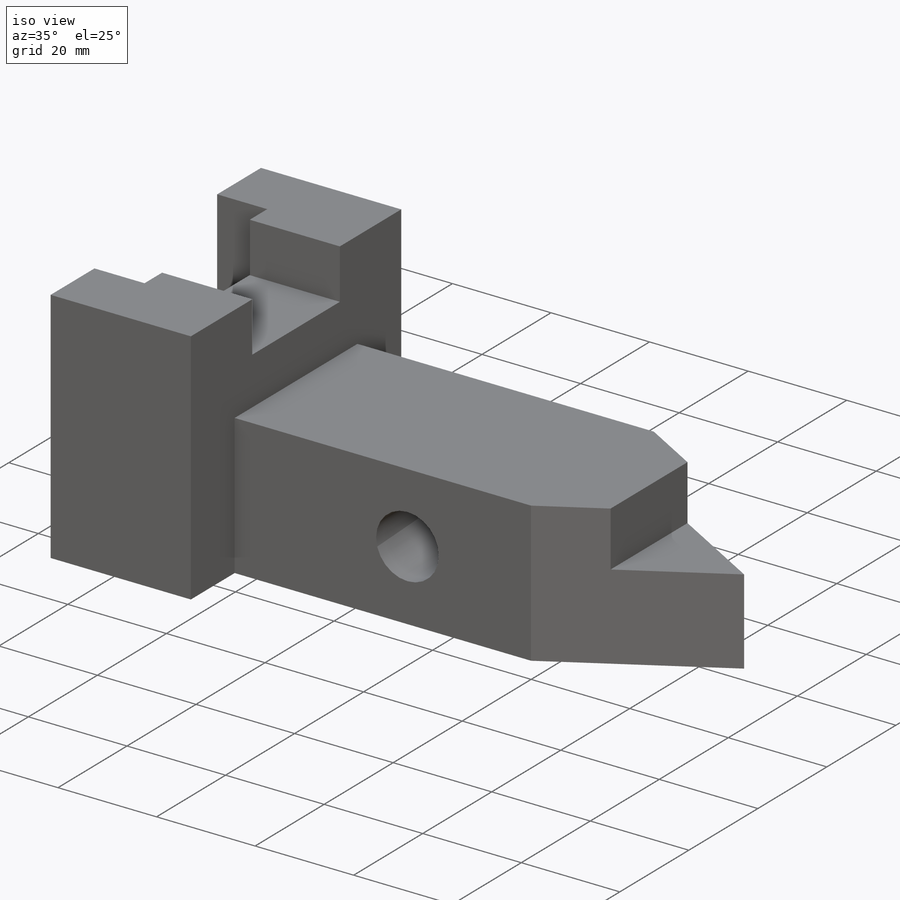
[diagram: iso view]
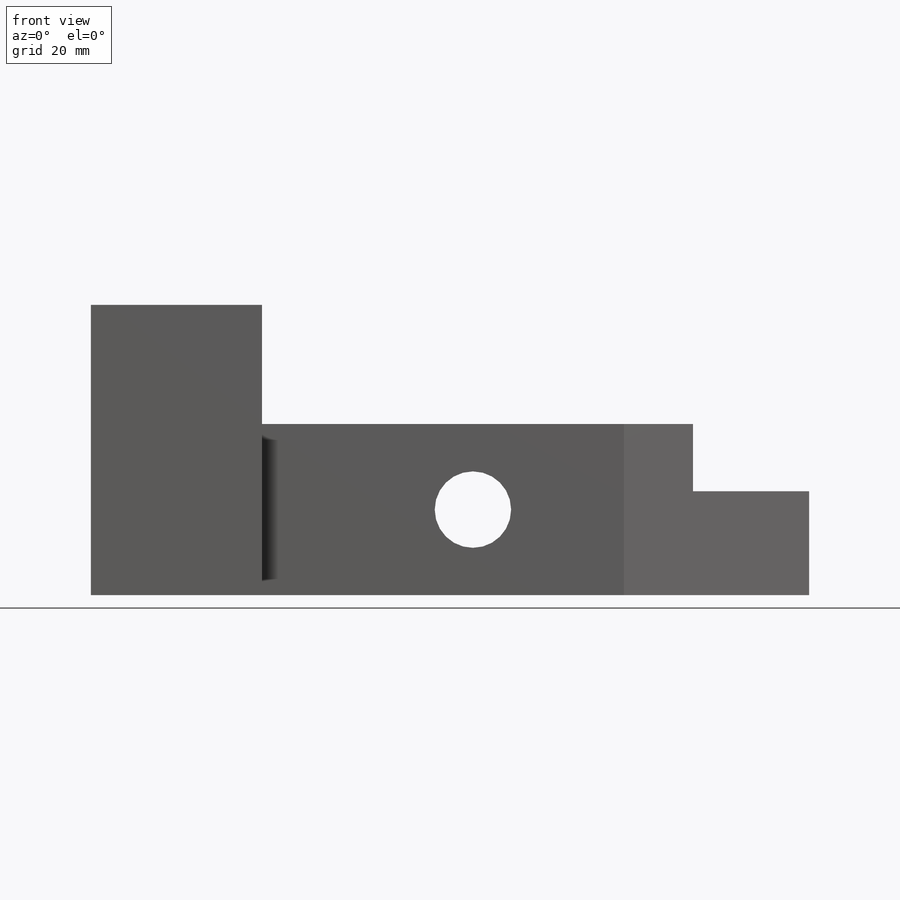
[diagram: front view]
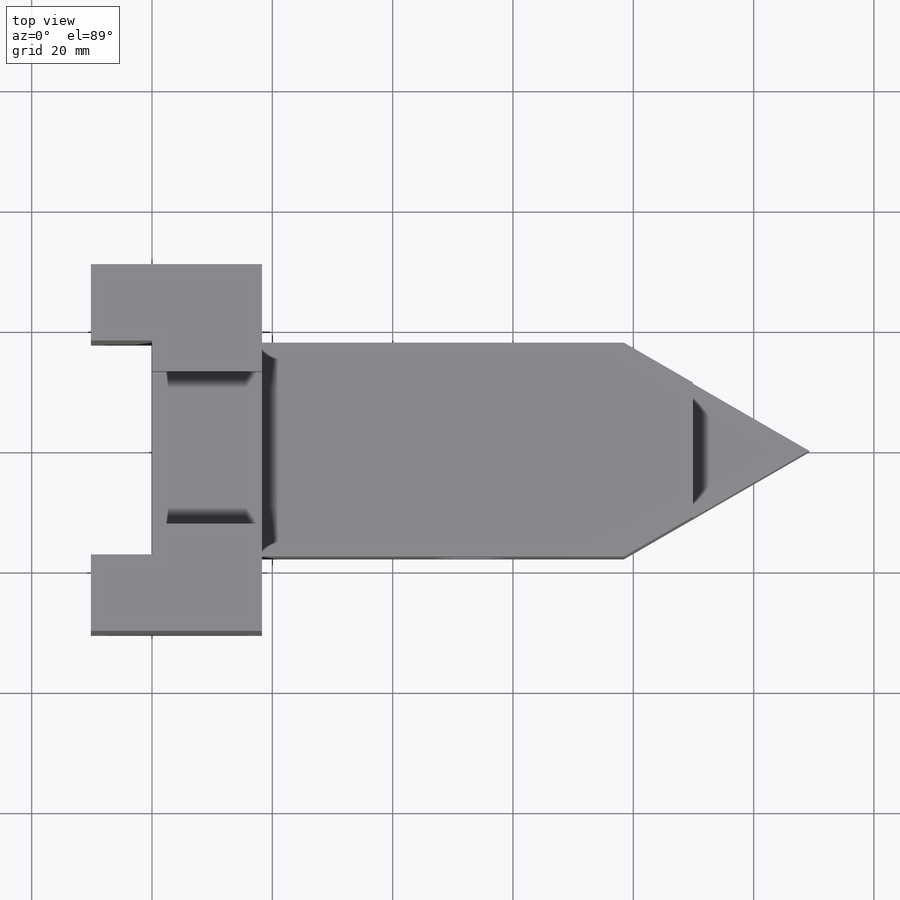
[diagram: top view]
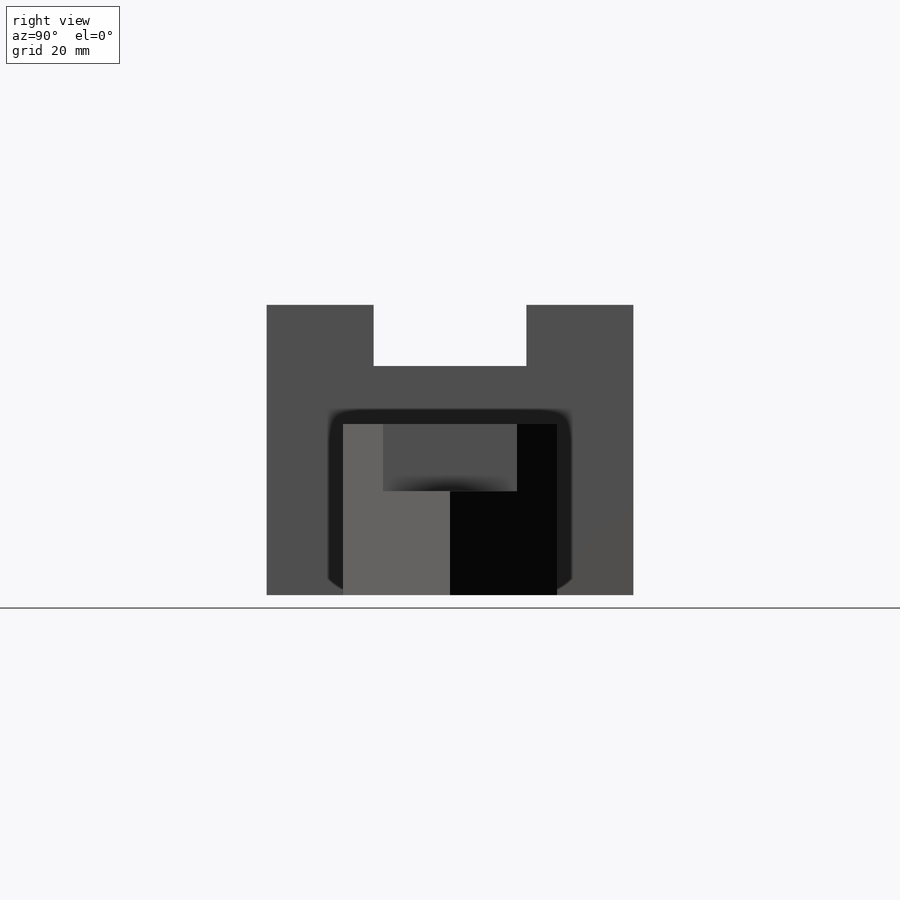
[diagram: right view]
SOLIDWORKS PART (.sldprt)
format: sldprt  version: not decoded by parser v0  size: 196,096 bytes
history: native  units: mm
features: sketch x5, cut_extrude x3, extrude x2, material x1 (+13 scaffold rows collapsed)
feature tree (24):
  scaffold x13  (default folders/planes/origin — collapsed)
  material  "AISI 1020 Steel, Cold Rolled"
  sketch  "Sketch1"  dims[c1.D1=28.448mm c1.D2=60.96mm c1.D3=12.7mm c1.D4=35.56mm c1.D5=10.16mm c1.D6=17.78mm c2.D5=10.16mm c2.D1=17.78mm c3.D5=10.16mm c3.D6=28.448mm]
  extrude  "Boss-Extrude1"  Depth=48.26mm
  sketch  "Sketch2"  dims[D1=17.78mm D2=25.4mm D3=10.16mm]
  cut_extrude  "Cut-Extrude1"  [1 undecoded]
  sketch  "Sketch3"  dims[c1.D1=12.7mm c1.D2=35.56mm c1.D3=119.38mm c1.D4=~19.233703mm c2.D4=90.0deg c3.D4=~7.33532mm c4.D4=60.0deg c4.D5=17.78mm]
  extrude  "Boss-Extrude2"  Depth=28.448mm
  sketch  "Sketch4"  dims[D1=19.304mm]
  cut_extrude  "Cut-Extrude2"  Depth=11.176mm
  sketch  "Sketch5"  dims[D2=12.7mm D1=14.224mm D3=35.052mm]
  cut_extrude  "Cut-Extrude3"  [1 undecoded]
decode coverage: 8 of 10 modeling features carry decoded parameters
note: ~ marks probable driven/reference dimensions
note: 2 parameter values undecoded
note: suppression state not decoded; provenance and decode notes live in map.json
